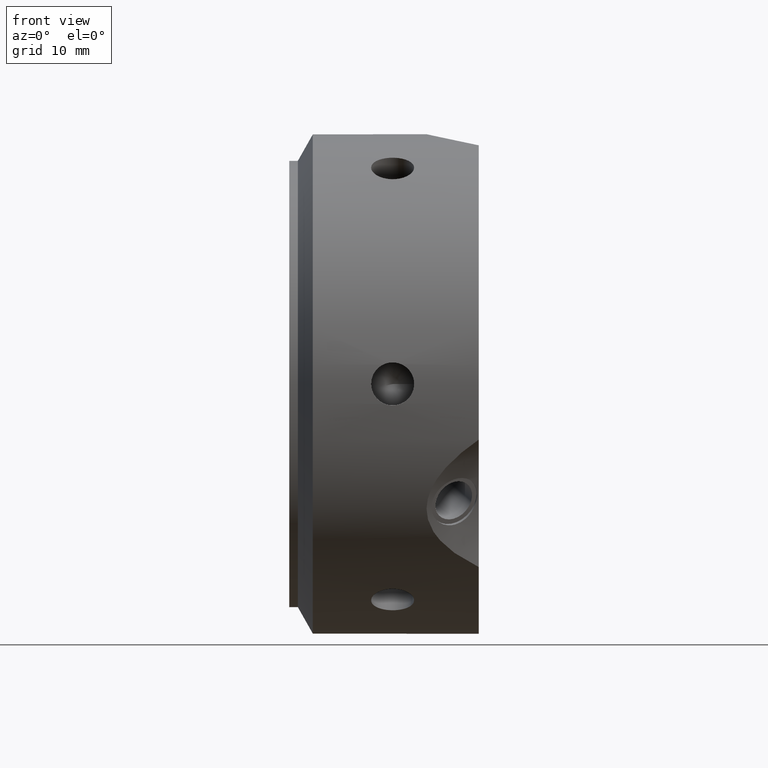
[diagram: clean part render]
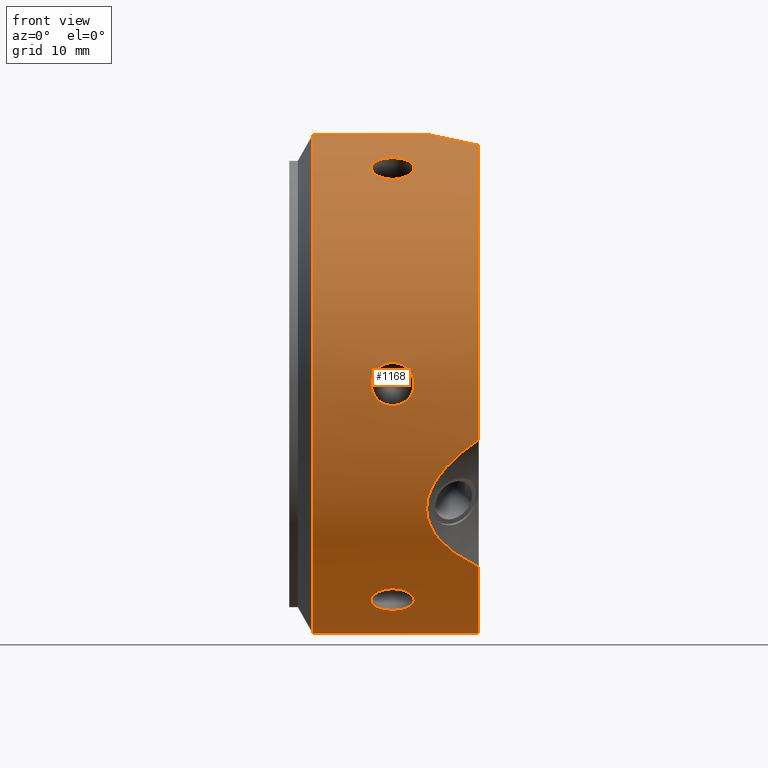
[diagram: same view with one face highlighted and labeled with its STEP entity id]
A machine part, front view. The second image highlights one B-rep face of the part: STEP entity #1168.
In plain terms, the highlighted cylindrical surface (bore or boss wall) has radius 29 mm, axis along (1, 0, 0).
Its self-contained STEP definition (entity closure, byte-faithful):
#90=CARTESIAN_POINT('',(9.500000000000002,14.500000000000027,25.114736709748712));
#91=VERTEX_POINT('',#90);
#92=CARTESIAN_POINT('',(14.500000000000002,14.500000000000028,25.114736709748712));
#93=VERTEX_POINT('',#92);
#94=CARTESIAN_POINT('',(9.500000000000002,14.50000000000003,25.114736709748708));
#95=CARTESIAN_POINT('',(9.500000000000002,14.771994841202966,24.957700414962002));
#96=CARTESIAN_POINT('',(9.562799379874525,15.059215014325895,24.785378361571052));
#97=CARTESIAN_POINT('',(9.817982172770854,15.582435182818632,24.45981707103774));
#98=CARTESIAN_POINT('',(10.010356974116508,15.818591148626721,24.306821813482252));
#99=CARTESIAN_POINT('',(10.454109536044101,16.189341922561166,24.061475867027006));
#100=CARTESIAN_POINT('',(10.735124046939619,16.348721483556574,23.952780408060889));
#101=CARTESIAN_POINT('',(11.35102604028684,16.559522086488411,23.80753266811768));
#102=CARTESIAN_POINT('',(11.68592682143332,16.611083722654794,23.771240976418401));
#103=CARTESIAN_POINT('',(12.314073178566684,16.611083722654794,23.771240976418401));
#104=CARTESIAN_POINT('',(12.64897395971316,16.559522086488411,23.80753266811768));
#105=CARTESIAN_POINT('',(13.264875953060379,16.348721483556574,23.952780408060889));
#106=CARTESIAN_POINT('',(13.545890463955903,16.189341922561166,24.061475867027006));
#107=CARTESIAN_POINT('',(13.989643025883494,15.818591148626723,24.306821813482252));
#108=CARTESIAN_POINT('',(14.182017827229149,15.582435182818635,24.45981707103774));
#109=CARTESIAN_POINT('',(14.437200620125481,15.059215014325895,24.785378361571052));
#110=CARTESIAN_POINT('',(14.500000000000002,14.771994841202966,24.957700414962005));
#111=CARTESIAN_POINT('',(14.500000000000002,14.50000000000003,25.114736709748708));
#112=B_SPLINE_CURVE_WITH_KNOTS('',3,(#94,#95,#96,#97,#98,#99,#100,#101,#102,#103,#104,#105,#106,#107,#108,#109,#110,#111),.UNSPECIFIED.,.F.,.U.,(4,2,2,2,2,2,2,2,4),(0.376887460884057,0.47110923775608,0.565331014628104,0.659552968198109,0.753774921768114,0.847996875338118,0.942218828908123,1.036440605780147,1.130662382652171),.UNSPECIFIED.);
#113=EDGE_CURVE('',#91,#93,#112,.T.);
#115=CARTESIAN_POINT('',(14.500000000000002,14.50000000000003,25.114736709748705));
#116=CARTESIAN_POINT('',(14.500000000000002,14.228005158797092,25.271773004535412));
#117=CARTESIAN_POINT('',(14.437200620125479,13.935159796366767,25.434351944243758));
#118=CARTESIAN_POINT('',(14.182017827229147,13.391605364029704,25.724693256664189));
#119=CARTESIAN_POINT('',(13.989643025883494,13.141029601424068,25.852712693531501));
#120=CARTESIAN_POINT('',(13.545890463955903,12.743178392111068,26.051119309003845));
#121=CARTESIAN_POINT('',(13.264875953060384,12.569355582872696,26.134798328186825));
#122=CARTESIAN_POINT('',(12.648973959713164,12.338167048773682,26.244733135487266));
#123=CARTESIAN_POINT('',(12.314073178566684,12.280956703732603,26.271240976418405));
#124=CARTESIAN_POINT('',(12.000000000000002,12.280956703732603,26.271240976418405));
#125=CARTESIAN_POINT('',(11.68592682143332,12.280956703732603,26.271240976418405));
#126=CARTESIAN_POINT('',(11.35102604028684,12.338167048773682,26.244733135487266));
#127=CARTESIAN_POINT('',(10.735124046939619,12.569355582872696,26.134798328186825));
#128=CARTESIAN_POINT('',(10.454109536044101,12.743178392111068,26.051119309003845));
#129=CARTESIAN_POINT('',(10.010356974116508,13.141029601424068,25.852712693531501));
#130=CARTESIAN_POINT('',(9.817982172770854,13.391605364029704,25.724693256664189));
#131=CARTESIAN_POINT('',(9.562799379874523,13.935159796366767,25.434351944243758));
#132=CARTESIAN_POINT('',(9.5,14.228005158797094,25.271773004535412));
#133=CARTESIAN_POINT('',(9.5,14.50000000000003,25.114736709748705));
#134=B_SPLINE_CURVE_WITH_KNOTS('',3,(#115,#116,#117,#118,#119,#120,#121,#122,#123,#124,#125,#126,#127,#128,#129,#130,#131,#132,#133),.UNSPECIFIED.,.F.,.U.,(4,2,2,2,3,2,2,2,4),(1.130662382652171,1.224884159524194,1.319105936396217,1.413327889966222,1.507549843536227,1.601771797106232,1.695993750676237,1.790215527548261,1.884437304420284),.UNSPECIFIED.);
#135=EDGE_CURVE('',#93,#91,#134,.T.);
#202=CARTESIAN_POINT('',(9.500000000000002,29.000000000000004,-1.931788E-014));
#203=VERTEX_POINT('',#202);
#204=CARTESIAN_POINT('',(14.500000000000002,29.000000000000004,-1.776357E-014));
#205=VERTEX_POINT('',#204);
#206=CARTESIAN_POINT('',(9.500000000000002,29.000000000000004,-1.949829E-014));
#207=CARTESIAN_POINT('',(9.500000000000002,29.000000000000004,-0.314072589573432));
#208=CARTESIAN_POINT('',(9.562799379874523,28.994374810692605,-0.648973582672727));
#209=CARTESIAN_POINT('',(9.817982172770854,28.974040546848279,-1.264876185626469));
#210=CARTESIAN_POINT('',(10.010356974116508,28.959620750050732,-1.545890880049264));
#211=CARTESIAN_POINT('',(10.454109536044101,28.932520314672175,-1.989643441976856));
#212=CARTESIAN_POINT('',(10.735124046939617,28.918077066429213,-2.182017920125952));
#213=CARTESIAN_POINT('',(11.351026040286838,28.897689135262034,-2.437200467369604));
#214=CARTESIAN_POINT('',(11.68592682143332,28.892040426387339,-2.50000000000002));
#215=CARTESIAN_POINT('',(12.314073178566684,28.892040426387339,-2.50000000000002));
#216=CARTESIAN_POINT('',(12.648973959713166,28.897689135262034,-2.437200467369605));
#217=CARTESIAN_POINT('',(13.264875953060384,28.918077066429213,-2.182017920125954));
#218=CARTESIAN_POINT('',(13.545890463955903,28.932520314672175,-1.989643441976856));
#219=CARTESIAN_POINT('',(13.989643025883494,28.959620750050732,-1.545890880049265));
#220=CARTESIAN_POINT('',(14.182017827229147,28.974040546848279,-1.26487618562647));
#221=CARTESIAN_POINT('',(14.437200620125479,28.994374810692605,-0.648973582672729));
#222=CARTESIAN_POINT('',(14.500000000000002,29.000000000000004,-0.314072589573433));
#223=CARTESIAN_POINT('',(14.500000000000002,29.000000000000004,-1.998401E-014));
#224=B_SPLINE_CURVE_WITH_KNOTS('',3,(#206,#207,#208,#209,#210,#211,#212,#213,#214,#215,#216,#217,#218,#219,#220,#221,#222,#223),.UNSPECIFIED.,.F.,.U.,(4,2,2,2,2,2,2,2,4),(0.376887460884057,0.47110923775608,0.565331014628104,0.659552968198109,0.753774921768114,0.847996875338119,0.942218828908123,1.036440605780147,1.130662382652171),.UNSPECIFIED.);
#225=EDGE_CURVE('',#203,#205,#224,.T.);
#227=CARTESIAN_POINT('',(14.500000000000002,29.000000000000004,-2.053913E-014));
#228=CARTESIAN_POINT('',(14.500000000000002,29.000000000000004,0.314072589573392));
#229=CARTESIAN_POINT('',(14.437200620125479,28.994374810692605,0.648973582672688));
#230=CARTESIAN_POINT('',(14.182017827229147,28.974040546848279,1.26487618562643));
#231=CARTESIAN_POINT('',(13.989643025883495,28.959620750050732,1.545890880049225));
#232=CARTESIAN_POINT('',(13.545890463955903,28.932520314672175,1.989643441976817));
#233=CARTESIAN_POINT('',(13.264875953060386,28.918077066429216,2.182017920125912));
#234=CARTESIAN_POINT('',(12.648973959713166,28.897689135262038,2.437200467369565));
#235=CARTESIAN_POINT('',(12.314073178566684,28.892040426387339,2.499999999999981));
#236=CARTESIAN_POINT('',(12.000000000000002,28.892040426387339,2.499999999999981));
#237=CARTESIAN_POINT('',(11.68592682143332,28.892040426387339,2.499999999999981));
#238=CARTESIAN_POINT('',(11.351026040286836,28.897689135262038,2.437200467369566));
#239=CARTESIAN_POINT('',(10.735124046939614,28.918077066429216,2.182017920125912));
#240=CARTESIAN_POINT('',(10.454109536044101,28.932520314672175,1.989643441976817));
#241=CARTESIAN_POINT('',(10.010356974116508,28.959620750050732,1.545890880049225));
#242=CARTESIAN_POINT('',(9.817982172770856,28.974040546848279,1.26487618562643));
#243=CARTESIAN_POINT('',(9.562799379874525,28.994374810692605,0.648973582672689));
#244=CARTESIAN_POINT('',(9.500000000000002,29.000000000000004,0.314072589573392));
#245=CARTESIAN_POINT('',(9.500000000000002,29.000000000000004,-1.984524E-014));
#246=B_SPLINE_CURVE_WITH_KNOTS('',3,(#227,#228,#229,#230,#231,#232,#233,#234,#235,#236,#237,#238,#239,#240,#241,#242,#243,#244,#245),.UNSPECIFIED.,.F.,.U.,(4,2,2,2,3,2,2,2,4),(1.130662382652171,1.224884159524194,1.319105936396218,1.413327889966223,1.507549843536227,1.601771797106232,1.695993750676237,1.790215527548261,1.884437304420284),.UNSPECIFIED.);
#247=EDGE_CURVE('',#205,#203,#246,.T.);
#314=CARTESIAN_POINT('',(9.500000000000002,14.499999999999995,-25.11473670974873));
#315=VERTEX_POINT('',#314);
#316=CARTESIAN_POINT('',(14.500000000000002,14.499999999999993,-25.11473670974873));
#317=VERTEX_POINT('',#316);
#318=CARTESIAN_POINT('',(9.500000000000002,14.499999999999993,-25.114736709748726));
#319=CARTESIAN_POINT('',(9.500000000000002,14.228005158797055,-25.271773004535433));
#320=CARTESIAN_POINT('',(9.562799379874523,13.935159796366722,-25.434351944243776));
#321=CARTESIAN_POINT('',(9.817982172770854,13.391605364029662,-25.72469325666421));
#322=CARTESIAN_POINT('',(10.010356974116508,13.141029601424028,-25.852712693531519));
#323=CARTESIAN_POINT('',(10.454109536044101,12.743178392111027,-26.05111930900387));
#324=CARTESIAN_POINT('',(10.735124046939614,12.569355582872655,-26.134798328186847));
#325=CARTESIAN_POINT('',(11.351026040286836,12.338167048773641,-26.244733135487287));
#326=CARTESIAN_POINT('',(11.68592682143332,12.280956703732562,-26.271240976418426));
#327=CARTESIAN_POINT('',(12.314073178566684,12.280956703732562,-26.271240976418426));
#328=CARTESIAN_POINT('',(12.648973959713166,12.338167048773643,-26.244733135487294));
#329=CARTESIAN_POINT('',(13.264875953060384,12.569355582872655,-26.13479832818685));
#330=CARTESIAN_POINT('',(13.545890463955903,12.743178392111027,-26.05111930900387));
#331=CARTESIAN_POINT('',(13.989643025883494,13.141029601424028,-25.852712693531519));
#332=CARTESIAN_POINT('',(14.182017827229147,13.391605364029664,-25.724693256664214));
#333=CARTESIAN_POINT('',(14.437200620125479,13.935159796366726,-25.43435194424378));
#334=CARTESIAN_POINT('',(14.5,14.22800515879705,-25.27177300453544));
#335=CARTESIAN_POINT('',(14.5,14.499999999999989,-25.11473670974873));
#336=B_SPLINE_CURVE_WITH_KNOTS('',3,(#318,#319,#320,#321,#322,#323,#324,#325,#326,#327,#328,#329,#330,#331,#332,#333,#334,#335),.UNSPECIFIED.,.F.,.U.,(4,2,2,2,2,2,2,2,4),(0.376887460884057,0.47110923775608,0.565331014628104,0.659552968198109,0.753774921768114,0.847996875338119,0.942218828908123,1.036440605780147,1.130662382652171),.UNSPECIFIED.);
#337=EDGE_CURVE('',#315,#317,#336,.T.);
#339=CARTESIAN_POINT('',(14.500000000000002,14.499999999999991,-25.11473670974873));
#340=CARTESIAN_POINT('',(14.500000000000002,14.771994841202931,-24.957700414962023));
#341=CARTESIAN_POINT('',(14.437200620125479,15.059215014325861,-24.78537836157107));
#342=CARTESIAN_POINT('',(14.182017827229147,15.5824351828186,-24.459817071037758));
#343=CARTESIAN_POINT('',(13.989643025883499,15.818591148626686,-24.30682181348228));
#344=CARTESIAN_POINT('',(13.545890463955903,16.18934192256113,-24.061475867027031));
#345=CARTESIAN_POINT('',(13.264875953060386,16.348721483556542,-23.95278040806091));
#346=CARTESIAN_POINT('',(12.648973959713166,16.559522086488379,-23.807532668117702));
#347=CARTESIAN_POINT('',(12.314073178566684,16.611083722654758,-23.771240976418426));
#348=CARTESIAN_POINT('',(12.000000000000002,16.611083722654758,-23.771240976418426));
#349=CARTESIAN_POINT('',(11.68592682143332,16.611083722654758,-23.771240976418426));
#350=CARTESIAN_POINT('',(11.351026040286838,16.559522086488379,-23.807532668117702));
#351=CARTESIAN_POINT('',(10.735124046939617,16.348721483556542,-23.95278040806091));
#352=CARTESIAN_POINT('',(10.454109536044101,16.18934192256113,-24.061475867027031));
#353=CARTESIAN_POINT('',(10.010356974116508,15.818591148626686,-24.30682181348228));
#354=CARTESIAN_POINT('',(9.817982172770856,15.5824351828186,-24.459817071037765));
#355=CARTESIAN_POINT('',(9.562799379874525,15.059215014325861,-24.785378361571077));
#356=CARTESIAN_POINT('',(9.500000000000002,14.771994841202931,-24.957700414962027));
#357=CARTESIAN_POINT('',(9.500000000000002,14.499999999999993,-25.11473670974873));
#358=B_SPLINE_CURVE_WITH_KNOTS('',3,(#339,#340,#341,#342,#343,#344,#345,#346,#347,#348,#349,#350,#351,#352,#353,#354,#355,#356,#357),.UNSPECIFIED.,.F.,.U.,(4,2,2,2,3,2,2,2,4),(1.130662382652171,1.224884159524194,1.319105936396218,1.413327889966223,1.507549843536228,1.601771797106232,1.695993750676237,1.790215527548261,1.884437304420285),.UNSPECIFIED.);
#359=EDGE_CURVE('',#317,#315,#358,.T.);
#426=CARTESIAN_POINT('',(9.500000000000002,-14.500000000000011,-25.114736709748719));
#427=VERTEX_POINT('',#426);
#428=CARTESIAN_POINT('',(14.500000000000002,-14.500000000000011,-25.114736709748719));
#429=VERTEX_POINT('',#428);
#430=CARTESIAN_POINT('',(9.500000000000002,-14.500000000000014,-25.114736709748719));
#431=CARTESIAN_POINT('',(9.500000000000002,-14.77199484120295,-24.957700414962012));
#432=CARTESIAN_POINT('',(9.562799379874523,-15.059215014325879,-24.785378361571059));
#433=CARTESIAN_POINT('',(9.817982172770854,-15.582435182818619,-24.459817071037747));
#434=CARTESIAN_POINT('',(10.010356974116508,-15.818591148626703,-24.306821813482262));
#435=CARTESIAN_POINT('',(10.454109536044101,-16.189341922561148,-24.061475867027013));
#436=CARTESIAN_POINT('',(10.735124046939614,-16.34872148355656,-23.952780408060903));
#437=CARTESIAN_POINT('',(11.351026040286836,-16.559522086488396,-23.807532668117695));
#438=CARTESIAN_POINT('',(11.68592682143332,-16.611083722654776,-23.771240976418415));
#439=CARTESIAN_POINT('',(12.314073178566684,-16.611083722654776,-23.771240976418415));
#440=CARTESIAN_POINT('',(12.648973959713164,-16.559522086488396,-23.807532668117691));
#441=CARTESIAN_POINT('',(13.264875953060384,-16.34872148355656,-23.952780408060899));
#442=CARTESIAN_POINT('',(13.545890463955903,-16.189341922561148,-24.061475867027017));
#443=CARTESIAN_POINT('',(13.989643025883494,-15.818591148626709,-24.306821813482262));
#444=CARTESIAN_POINT('',(14.182017827229147,-15.582435182818619,-24.459817071037747));
#445=CARTESIAN_POINT('',(14.437200620125479,-15.059215014325879,-24.785378361571059));
#446=CARTESIAN_POINT('',(14.500000000000002,-14.77199484120295,-24.957700414962009));
#447=CARTESIAN_POINT('',(14.500000000000002,-14.500000000000012,-25.114736709748719));
#448=B_SPLINE_CURVE_WITH_KNOTS('',3,(#430,#431,#432,#433,#434,#435,#436,#437,#438,#439,#440,#441,#442,#443,#444,#445,#446,#447),.UNSPECIFIED.,.F.,.U.,(4,2,2,2,2,2,2,2,4),(0.376887460884057,0.471109237756081,0.565331014628104,0.659552968198109,0.753774921768114,0.847996875338119,0.942218828908123,1.036440605780147,1.130662382652171),.UNSPECIFIED.);
#449=EDGE_CURVE('',#427,#429,#448,.T.);
#451=CARTESIAN_POINT('',(14.500000000000002,-14.500000000000011,-25.114736709748719));
#452=CARTESIAN_POINT('',(14.500000000000002,-14.228005158797075,-25.271773004535419));
#453=CARTESIAN_POINT('',(14.437200620125479,-13.935159796366749,-25.434351944243762));
#454=CARTESIAN_POINT('',(14.182017827229153,-13.391605364029688,-25.724693256664196));
#455=CARTESIAN_POINT('',(13.989643025883499,-13.141029601424052,-25.852712693531508));
#456=CARTESIAN_POINT('',(13.545890463955903,-12.74317839211105,-26.051119309003852));
#457=CARTESIAN_POINT('',(13.26487595306039,-12.569355582872674,-26.134798328186836));
#458=CARTESIAN_POINT('',(12.648973959713167,-12.338167048773661,-26.24473313548728));
#459=CARTESIAN_POINT('',(12.314073178566684,-12.280956703732585,-26.271240976418415));
#460=CARTESIAN_POINT('',(12.000000000000002,-12.280956703732585,-26.271240976418415));
#461=CARTESIAN_POINT('',(11.68592682143332,-12.280956703732585,-26.271240976418415));
#462=CARTESIAN_POINT('',(11.35102604028684,-12.338167048773665,-26.244733135487273));
#463=CARTESIAN_POINT('',(10.735124046939619,-12.569355582872678,-26.134798328186832));
#464=CARTESIAN_POINT('',(10.454109536044101,-12.743178392111048,-26.051119309003859));
#465=CARTESIAN_POINT('',(10.010356974116508,-13.14102960142405,-25.852712693531515));
#466=CARTESIAN_POINT('',(9.817982172770854,-13.391605364029683,-25.724693256664203));
#467=CARTESIAN_POINT('',(9.562799379874525,-13.935159796366747,-25.434351944243772));
#468=CARTESIAN_POINT('',(9.500000000000002,-14.228005158797075,-25.271773004535419));
#469=CARTESIAN_POINT('',(9.500000000000002,-14.500000000000012,-25.114736709748712));
#470=B_SPLINE_CURVE_WITH_KNOTS('',3,(#451,#452,#453,#454,#455,#456,#457,#458,#459,#460,#461,#462,#463,#464,#465,#466,#467,#468,#469),.UNSPECIFIED.,.F.,.U.,(4,2,2,2,3,2,2,2,4),(1.130662382652171,1.224884159524194,1.319105936396218,1.413327889966223,1.507549843536228,1.601771797106232,1.695993750676237,1.790215527548261,1.884437304420285),.UNSPECIFIED.);
#471=EDGE_CURVE('',#429,#427,#470,.T.);
#538=CARTESIAN_POINT('',(9.500000000000002,-29.000000000000004,8.049117E-015));
#539=VERTEX_POINT('',#538);
#540=CARTESIAN_POINT('',(14.500000000000002,-29.000000000000004,8.881784E-015));
#541=VERTEX_POINT('',#540);
#542=CARTESIAN_POINT('',(9.500000000000002,-29.000000000000004,7.216450E-015));
#543=CARTESIAN_POINT('',(9.500000000000002,-29.000000000000004,0.314072589573419));
#544=CARTESIAN_POINT('',(9.562799379874523,-28.994374810692605,0.648973582672715));
#545=CARTESIAN_POINT('',(9.817982172770854,-28.974040546848279,1.264876185626457));
#546=CARTESIAN_POINT('',(10.010356974116508,-28.959620750050732,1.545890880049252));
#547=CARTESIAN_POINT('',(10.454109536044101,-28.932520314672175,1.989643441976844));
#548=CARTESIAN_POINT('',(10.735124046939617,-28.918077066429216,2.182017920125939));
#549=CARTESIAN_POINT('',(11.351026040286838,-28.897689135262038,2.437200467369592));
#550=CARTESIAN_POINT('',(11.68592682143332,-28.892040426387339,2.500000000000008));
#551=CARTESIAN_POINT('',(12.314073178566684,-28.892040426387339,2.500000000000008));
#552=CARTESIAN_POINT('',(12.648973959713166,-28.897689135262038,2.437200467369593));
#553=CARTESIAN_POINT('',(13.264875953060384,-28.918077066429216,2.182017920125941));
#554=CARTESIAN_POINT('',(13.545890463955903,-28.932520314672175,1.989643441976844));
#555=CARTESIAN_POINT('',(13.989643025883494,-28.959620750050732,1.545890880049253));
#556=CARTESIAN_POINT('',(14.182017827229147,-28.974040546848279,1.264876185626458));
#557=CARTESIAN_POINT('',(14.437200620125479,-28.994374810692605,0.648973582672717));
#558=CARTESIAN_POINT('',(14.500000000000002,-29.000000000000004,0.31407258957342));
#559=CARTESIAN_POINT('',(14.500000000000002,-29.000000000000004,7.632783E-015));
#560=B_SPLINE_CURVE_WITH_KNOTS('',3,(#542,#543,#544,#545,#546,#547,#548,#549,#550,#551,#552,#553,#554,#555,#556,#557,#558,#559),.UNSPECIFIED.,.F.,.U.,(4,2,2,2,2,2,2,2,4),(0.376887460884057,0.47110923775608,0.565331014628104,0.659552968198109,0.753774921768114,0.847996875338119,0.942218828908123,1.036440605780147,1.130662382652171),.UNSPECIFIED.);
#561=EDGE_CURVE('',#539,#541,#560,.T.);
#563=CARTESIAN_POINT('',(14.500000000000002,-29.000000000000004,8.257284E-015));
#564=CARTESIAN_POINT('',(14.500000000000002,-29.000000000000004,-0.314072589573404));
#565=CARTESIAN_POINT('',(14.437200620125479,-28.994374810692605,-0.648973582672701));
#566=CARTESIAN_POINT('',(14.182017827229147,-28.974040546848279,-1.264876185626442));
#567=CARTESIAN_POINT('',(13.989643025883495,-28.959620750050732,-1.545890880049237));
#568=CARTESIAN_POINT('',(13.545890463955903,-28.932520314672175,-1.989643441976829));
#569=CARTESIAN_POINT('',(13.264875953060386,-28.918077066429216,-2.182017920125924));
#570=CARTESIAN_POINT('',(12.648973959713166,-28.897689135262038,-2.437200467369577));
#571=CARTESIAN_POINT('',(12.314073178566684,-28.892040426387339,-2.499999999999993));
#572=CARTESIAN_POINT('',(12.000000000000002,-28.892040426387339,-2.499999999999993));
#573=CARTESIAN_POINT('',(11.68592682143332,-28.892040426387339,-2.499999999999993));
#574=CARTESIAN_POINT('',(11.351026040286836,-28.897689135262038,-2.437200467369578));
#575=CARTESIAN_POINT('',(10.735124046939614,-28.918077066429216,-2.182017920125924));
#576=CARTESIAN_POINT('',(10.454109536044101,-28.932520314672175,-1.989643441976829));
#577=CARTESIAN_POINT('',(10.010356974116508,-28.959620750050732,-1.545890880049238));
#578=CARTESIAN_POINT('',(9.817982172770856,-28.974040546848279,-1.264876185626443));
#579=CARTESIAN_POINT('',(9.562799379874525,-28.994374810692605,-0.648973582672701));
#580=CARTESIAN_POINT('',(9.500000000000002,-29.000000000000004,-0.314072589573405));
#581=CARTESIAN_POINT('',(9.500000000000002,-29.000000000000004,7.494005E-015));
#582=B_SPLINE_CURVE_WITH_KNOTS('',3,(#563,#564,#565,#566,#567,#568,#569,#570,#571,#572,#573,#574,#575,#576,#577,#578,#579,#580,#581),.UNSPECIFIED.,.F.,.U.,(4,2,2,2,3,2,2,2,4),(1.130662382652171,1.224884159524194,1.319105936396218,1.413327889966223,1.507549843536227,1.601771797106232,1.695993750676237,1.790215527548261,1.884437304420284),.UNSPECIFIED.);
#583=EDGE_CURVE('',#541,#539,#582,.T.);
#687=CARTESIAN_POINT('',(9.500000000000002,-14.5,25.114736709748726));
#688=VERTEX_POINT('',#687);
#689=CARTESIAN_POINT('',(14.500000000000002,-14.499999999999996,25.114736709748726));
#690=VERTEX_POINT('',#689);
#691=CARTESIAN_POINT('',(9.500000000000002,-14.499999999999996,25.114736709748723));
#692=CARTESIAN_POINT('',(9.500000000000002,-14.228005158797059,25.271773004535426));
#693=CARTESIAN_POINT('',(9.562799379874523,-13.935159796366731,25.434351944243776));
#694=CARTESIAN_POINT('',(9.817982172770854,-13.391605364029671,25.72469325666421));
#695=CARTESIAN_POINT('',(10.010356974116508,-13.141029601424034,25.852712693531519));
#696=CARTESIAN_POINT('',(10.454109536044099,-12.743178392111034,26.05111930900387));
#697=CARTESIAN_POINT('',(10.735124046939614,-12.56935558287266,26.134798328186839));
#698=CARTESIAN_POINT('',(11.351026040286838,-12.338167048773645,26.244733135487284));
#699=CARTESIAN_POINT('',(11.68592682143332,-12.280956703732567,26.271240976418419));
#700=CARTESIAN_POINT('',(12.314073178566684,-12.280956703732567,26.271240976418419));
#701=CARTESIAN_POINT('',(12.648973959713166,-12.338167048773645,26.244733135487284));
#702=CARTESIAN_POINT('',(13.264875953060386,-12.569355582872658,26.134798328186839));
#703=CARTESIAN_POINT('',(13.545890463955903,-12.743178392111037,26.05111930900387));
#704=CARTESIAN_POINT('',(13.989643025883494,-13.141029601424037,25.852712693531519));
#705=CARTESIAN_POINT('',(14.182017827229149,-13.391605364029671,25.72469325666421));
#706=CARTESIAN_POINT('',(14.437200620125479,-13.935159796366731,25.434351944243776));
#707=CARTESIAN_POINT('',(14.500000000000002,-14.228005158797059,25.271773004535429));
#708=CARTESIAN_POINT('',(14.500000000000002,-14.499999999999996,25.114736709748723));
#709=B_SPLINE_CURVE_WITH_KNOTS('',3,(#691,#692,#693,#694,#695,#696,#697,#698,#699,#700,#701,#702,#703,#704,#705,#706,#707,#708),.UNSPECIFIED.,.F.,.U.,(4,2,2,2,2,2,2,2,4),(0.376887460884057,0.471109237756081,0.565331014628104,0.659552968198109,0.753774921768114,0.847996875338119,0.942218828908124,1.036440605780147,1.130662382652171),.UNSPECIFIED.);
#710=EDGE_CURVE('',#688,#690,#709,.T.);
#712=CARTESIAN_POINT('',(14.500000000000002,-14.499999999999995,25.114736709748726));
#713=CARTESIAN_POINT('',(14.500000000000002,-14.771994841202932,24.957700414962019));
#714=CARTESIAN_POINT('',(14.437200620125479,-15.059215014325869,24.78537836157107));
#715=CARTESIAN_POINT('',(14.182017827229147,-15.582435182818607,24.459817071037758));
#716=CARTESIAN_POINT('',(13.989643025883495,-15.818591148626691,24.306821813482276));
#717=CARTESIAN_POINT('',(13.545890463955903,-16.189341922561134,24.061475867027031));
#718=CARTESIAN_POINT('',(13.264875953060386,-16.348721483556545,23.95278040806091));
#719=CARTESIAN_POINT('',(12.648973959713166,-16.559522086488382,23.807532668117702));
#720=CARTESIAN_POINT('',(12.314073178566684,-16.611083722654762,23.771240976418419));
#721=CARTESIAN_POINT('',(12.000000000000002,-16.611083722654762,23.771240976418419));
#722=CARTESIAN_POINT('',(11.68592682143332,-16.611083722654762,23.771240976418419));
#723=CARTESIAN_POINT('',(11.351026040286838,-16.559522086488382,23.807532668117702));
#724=CARTESIAN_POINT('',(10.735124046939617,-16.348721483556545,23.95278040806091));
#725=CARTESIAN_POINT('',(10.454109536044101,-16.189341922561134,24.061475867027031));
#726=CARTESIAN_POINT('',(10.01035697411651,-15.818591148626693,24.306821813482276));
#727=CARTESIAN_POINT('',(9.817982172770854,-15.582435182818607,24.459817071037754));
#728=CARTESIAN_POINT('',(9.562799379874523,-15.059215014325869,24.785378361571063));
#729=CARTESIAN_POINT('',(9.500000000000002,-14.771994841202936,24.957700414962019));
#730=CARTESIAN_POINT('',(9.500000000000002,-14.499999999999996,25.114736709748726));
#731=B_SPLINE_CURVE_WITH_KNOTS('',3,(#712,#713,#714,#715,#716,#717,#718,#719,#720,#721,#722,#723,#724,#725,#726,#727,#728,#729,#730),.UNSPECIFIED.,.F.,.U.,(4,2,2,2,3,2,2,2,4),(1.130662382652171,1.224884159524194,1.319105936396218,1.413327889966223,1.507549843536228,1.601771797106232,1.695993750676238,1.790215527548261,1.884437304420285),.UNSPECIFIED.);
#732=EDGE_CURVE('',#690,#688,#731,.T.);
#873=CARTESIAN_POINT('',(21.999999999999993,19.728523466079878,-21.255243161355175));
#874=VERTEX_POINT('',#873);
#875=CARTESIAN_POINT('',(21.999999999999993,28.271842274388973,-6.457780920105037));
#876=VERTEX_POINT('',#875);
#884=CARTESIAN_POINT('',(21.999999999999996,28.271842274388973,-6.457780920105043));
#885=CARTESIAN_POINT('',(21.466927303490419,28.187844520566617,-6.825518890291551));
#886=CARTESIAN_POINT('',(20.950659131943375,28.093667064811193,-7.205035813614829));
#887=CARTESIAN_POINT('',(19.321204441546925,27.742038406289016,-8.500060435285617));
#888=CARTESIAN_POINT('',(18.171586374376819,27.401811012486977,-9.579015678680262));
#889=CARTESIAN_POINT('',(16.899027447684226,26.694148611301827,-11.350182456347772));
#890=CARTESIAN_POINT('',(16.549465168724961,26.42512127707122,-11.966608334215884));
#891=CARTESIAN_POINT('',(16.068601417164786,25.819104580492617,-13.223486237735569));
#892=CARTESIAN_POINT('',(15.937822173508934,25.481909168118399,-13.86403864696376));
#893=CARTESIAN_POINT('',(15.937822173508934,24.747564251379039,-15.135961353036272));
#894=CARTESIAN_POINT('',(16.068601417164782,24.361427298719207,-15.748257350806021));
#895=CARTESIAN_POINT('',(16.549465168724954,23.575947453105137,-16.901522156920453));
#896=CARTESIAN_POINT('',(16.899027447684222,23.176620650436529,-17.442719601610605));
#897=CARTESIAN_POINT('',(18.171586374376808,21.996576427230011,-18.941156607173792));
#898=CARTESIAN_POINT('',(19.321204441546918,21.232287473804845,-19.775279794967059));
#899=CARTESIAN_POINT('',(20.950659131943368,20.286577582172704,-20.727311456781301));
#900=CARTESIAN_POINT('',(21.466927303490415,20.004995013286347,-20.998629987590924));
#901=CARTESIAN_POINT('',(21.999999999999993,19.728523466079885,-21.255243161355168));
#902=B_SPLINE_CURVE_WITH_KNOTS('',3,(#884,#885,#886,#887,#888,#889,#890,#891,#892,#893,#894,#895,#896,#897,#898,#899,#900,#901),.UNSPECIFIED.,.F.,.U.,(4,2,2,2,2,2,2,2,4),(2.195360020785384,2.388019891683335,2.828626841726952,3.048930316748761,3.269233791770569,3.489537266792378,3.709840741814186,4.150447691857803,4.343107562755753),.UNSPECIFIED.);
#903=EDGE_CURVE('',#876,#874,#902,.T.);
#1044=CARTESIAN_POINT('',(21.999999999999993,-28.27184227438898,-6.457780920105022));
#1045=VERTEX_POINT('',#1044);
#1046=CARTESIAN_POINT('',(21.999999999999993,-19.728523466079896,-21.255243161355153));
#1047=VERTEX_POINT('',#1046);
#1055=CARTESIAN_POINT('',(21.999999999999996,-19.728523466079899,-21.25524316135515));
#1056=CARTESIAN_POINT('',(21.425701412099638,-20.026376310907501,-20.978784463893447));
#1057=CARTESIAN_POINT('',(20.871017105127301,-20.330086187653315,-20.685342478143074));
#1058=CARTESIAN_POINT('',(19.232532382961814,-21.290428901750897,-19.712247012788776));
#1059=CARTESIAN_POINT('',(18.110463269341828,-22.044375798130371,-18.884491979583942));
#1060=CARTESIAN_POINT('',(16.871004034390278,-23.207366992204253,-17.401516264141936));
#1061=CARTESIAN_POINT('',(16.531079738804845,-23.600768910905781,-16.866447436037046));
#1062=CARTESIAN_POINT('',(16.064222299984941,-24.374049562455827,-15.728288219402813));
#1063=CARTESIAN_POINT('',(15.937822173508934,-24.75391139141653,-15.124967784008575));
#1064=CARTESIAN_POINT('',(15.937822173508934,-25.47556202808093,-13.875032215991407));
#1065=CARTESIAN_POINT('',(16.064222299984941,-25.808121937274272,-13.244402004486307));
#1066=CARTESIAN_POINT('',(16.531079738804845,-26.407156406655886,-12.005641707671868));
#1067=CARTESIAN_POINT('',(16.871004034390285,-26.673838645217131,-11.397411238126349));
#1068=CARTESIAN_POINT('',(18.110463269341839,-27.376637690948368,-9.648743461959768));
#1069=CARTESIAN_POINT('',(19.232532382961814,-27.716521129624454,-8.581928779988292));
#1070=CARTESIAN_POINT('',(20.871017105127297,-28.079075165879917,-7.263699860563344));
#1071=CARTESIAN_POINT('',(21.425701412099638,-28.181348441703786,-6.853958399046047));
#1072=CARTESIAN_POINT('',(21.999999999999996,-28.271842274388973,-6.457780920105027));
#1073=B_SPLINE_CURVE_WITH_KNOTS('',3,(#1055,#1056,#1057,#1058,#1059,#1060,#1061,#1062,#1063,#1064,#1065,#1066,#1067,#1068,#1069,#1070,#1071,#1072),.UNSPECIFIED.,.F.,.U.,(4,2,2,2,2,2,2,2,4),(2.127349560442685,2.334548571372793,2.767538953371434,2.984034144370754,3.200529335370074,3.417024526369395,3.633519717368715,4.066510099367355,4.273709110297463),.UNSPECIFIED.);
#1074=EDGE_CURVE('',#1047,#1045,#1073,.T.);
#1082=CARTESIAN_POINT('',(12.366025403784429,0.0,0.0));
#1083=DIRECTION('',(1.0,0.0,0.0));
#1084=DIRECTION('',(0.0,1.0,0.0));
#1085=AXIS2_PLACEMENT_3D('',#1082,#1083,#1084);
#1086=CYLINDRICAL_SURFACE('',#1085,29.000000000000004);
#1087=CARTESIAN_POINT('',(2.732050807568865,29.0,0.0));
#1088=VERTEX_POINT('',#1087);
#1089=CARTESIAN_POINT('',(2.732050807568865,0.0,0.0));
#1090=DIRECTION('',(1.0,0.0,0.0));
#1091=DIRECTION('',(0.0,1.0,0.0));
#1092=AXIS2_PLACEMENT_3D('',#1089,#1090,#1091);
#1093=CIRCLE('',#1092,29.0);
#1094=EDGE_CURVE('',#1088,#1088,#1093,.T.);
#1095=ORIENTED_EDGE('',*,*,#1094,.T.);
#1096=EDGE_LOOP('',(#1095));
#1097=FACE_OUTER_BOUND('',#1096,.T.);
#1098=ORIENTED_EDGE('',*,*,#113,.T.);
#1099=ORIENTED_EDGE('',*,*,#135,.T.);
#1100=EDGE_LOOP('',(#1098,#1099));
#1101=FACE_BOUND('',#1100,.T.);
#1102=ORIENTED_EDGE('',*,*,#225,.T.);
#1103=ORIENTED_EDGE('',*,*,#247,.T.);
#1104=EDGE_LOOP('',(#1102,#1103));
#1105=FACE_BOUND('',#1104,.T.);
#1106=ORIENTED_EDGE('',*,*,#337,.T.);
#1107=ORIENTED_EDGE('',*,*,#359,.T.);
#1108=EDGE_LOOP('',(#1106,#1107));
#1109=FACE_BOUND('',#1108,.T.);
#1110=ORIENTED_EDGE('',*,*,#449,.T.);
#1111=ORIENTED_EDGE('',*,*,#471,.T.);
#1112=EDGE_LOOP('',(#1110,#1111));
#1113=FACE_BOUND('',#1112,.T.);
#1114=ORIENTED_EDGE('',*,*,#561,.T.);
#1115=ORIENTED_EDGE('',*,*,#583,.T.);
#1116=EDGE_LOOP('',(#1114,#1115));
#1117=FACE_BOUND('',#1116,.T.);
#1118=ORIENTED_EDGE('',*,*,#710,.T.);
#1119=ORIENTED_EDGE('',*,*,#732,.T.);
#1120=EDGE_LOOP('',(#1118,#1119));
#1121=FACE_BOUND('',#1120,.T.);
#1122=ORIENTED_EDGE('',*,*,#903,.T.);
#1123=CARTESIAN_POINT('',(21.999999999999993,0.0,0.0));
#1124=DIRECTION('',(1.0,0.0,0.0));
#1125=DIRECTION('',(0.0,1.0,0.0));
#1126=AXIS2_PLACEMENT_3D('',#1123,#1124,#1125);
#1127=CIRCLE('',#1126,29.000000000000004);
#1128=EDGE_CURVE('',#1047,#874,#1127,.T.);
#1129=ORIENTED_EDGE('',*,*,#1128,.F.);
#1130=ORIENTED_EDGE('',*,*,#1074,.T.);
#1131=CARTESIAN_POINT('',(21.999999999999993,-8.543318808309085,27.71302408146019));
#1132=VERTEX_POINT('',#1131);
#1133=CARTESIAN_POINT('',(21.999999999999993,0.0,0.0));
#1134=DIRECTION('',(1.0,0.0,0.0));
#1135=DIRECTION('',(0.0,1.0,0.0));
#1136=AXIS2_PLACEMENT_3D('',#1133,#1134,#1135);
#1137=CIRCLE('',#1136,29.000000000000004);
#1138=EDGE_CURVE('',#1132,#1045,#1137,.T.);
#1139=ORIENTED_EDGE('',*,*,#1138,.F.);
#1140=CARTESIAN_POINT('',(21.999999999999993,8.543318808309085,27.71302408146019));
#1141=VERTEX_POINT('',#1140);
#1142=CARTESIAN_POINT('',(21.999999999999996,-8.543318808309083,27.71302408146019));
#1143=CARTESIAN_POINT('',(20.874113373630671,-7.781982562985641,27.94772738359713));
#1144=CARTESIAN_POINT('',(19.826272927357209,-6.956741405009965,28.168758759339106));
#1145=CARTESIAN_POINT('',(18.128023413653708,-5.263111323145433,28.52951848413209));
#1146=CARTESIAN_POINT('',(17.357315567704546,-4.325661633197829,28.694510615487726));
#1147=CARTESIAN_POINT('',(16.256874825422962,-2.254601974839349,28.931005701930129));
#1148=CARTESIAN_POINT('',(15.93782217350893,-1.115049472406797,29.000000000000004));
#1149=CARTESIAN_POINT('',(15.93782217350893,1.115049472406797,29.000000000000004));
#1150=CARTESIAN_POINT('',(16.256874825422962,2.254601974839349,28.931005701930129));
#1151=CARTESIAN_POINT('',(17.357315567704546,4.325661633197829,28.694510615487726));
#1152=CARTESIAN_POINT('',(18.128023413653708,5.263111323145433,28.52951848413209));
#1153=CARTESIAN_POINT('',(19.826272927357209,6.956741405009965,28.168758759339106));
#1154=CARTESIAN_POINT('',(20.874113373630678,7.781982562985642,27.94772738359713));
#1155=CARTESIAN_POINT('',(21.999999999999996,8.543318808309081,27.71302408146019));
#1156=B_SPLINE_CURVE_WITH_KNOTS('',3,(#1142,#1143,#1144,#1145,#1146,#1147,#1148,#1149,#1150,#1151,#1152,#1153,#1154,#1155),.UNSPECIFIED.,.F.,.U.,(4,2,2,2,2,2,4),(1.217403561249837,1.610509751358312,1.945024593080351,2.279539434802389,2.614054276524429,2.948569118246468,3.341675308354942),.UNSPECIFIED.);
#1157=EDGE_CURVE('',#1132,#1141,#1156,.T.);
#1158=ORIENTED_EDGE('',*,*,#1157,.T.);
#1159=CARTESIAN_POINT('',(21.999999999999993,0.0,0.0));
#1160=DIRECTION('',(1.0,0.0,0.0));
#1161=DIRECTION('',(0.0,1.0,0.0));
#1162=AXIS2_PLACEMENT_3D('',#1159,#1160,#1161);
#1163=CIRCLE('',#1162,29.000000000000004);
#1164=EDGE_CURVE('',#876,#1141,#1163,.T.);
#1165=ORIENTED_EDGE('',*,*,#1164,.F.);
#1166=EDGE_LOOP('',(#1122,#1129,#1130,#1139,#1158,#1165));
#1167=FACE_BOUND('',#1166,.T.);
#1168=ADVANCED_FACE('',(#1097,#1101,#1105,#1109,#1113,#1117,#1121,#1167),#1086,.T.);